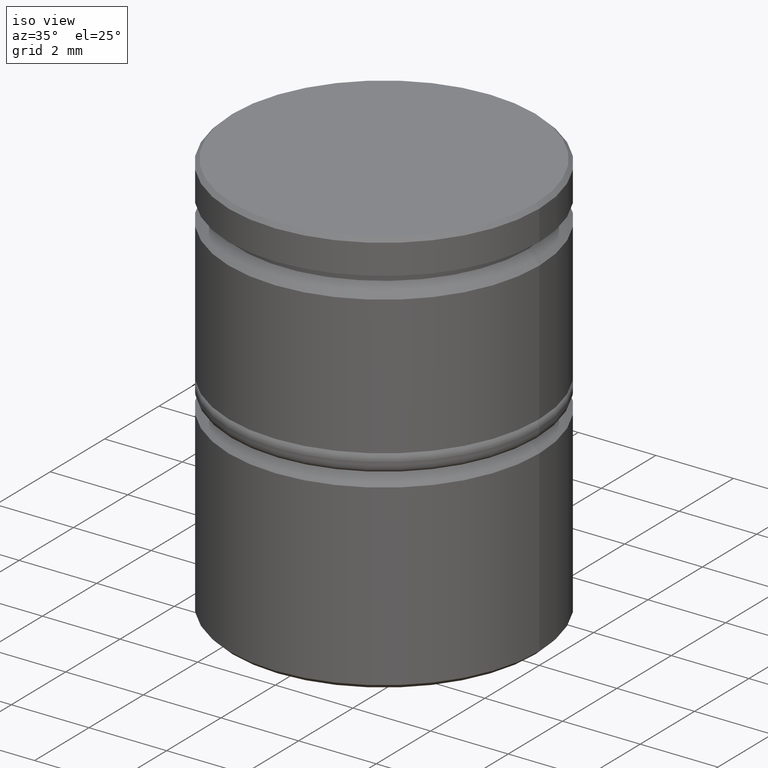
[diagram: clean part render]
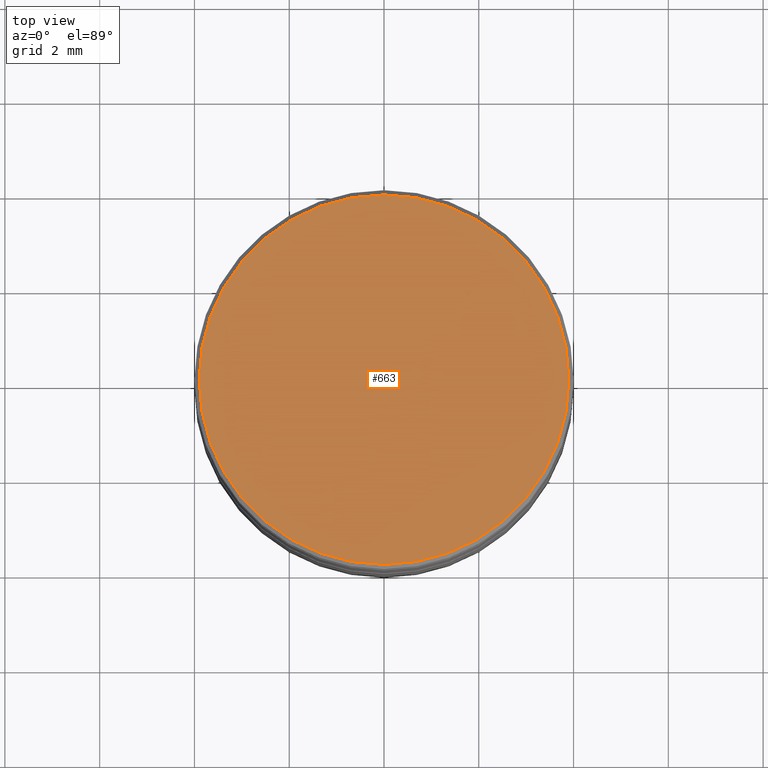
[diagram: tour spotlight — one face highlighted and labeled with its STEP entity id]
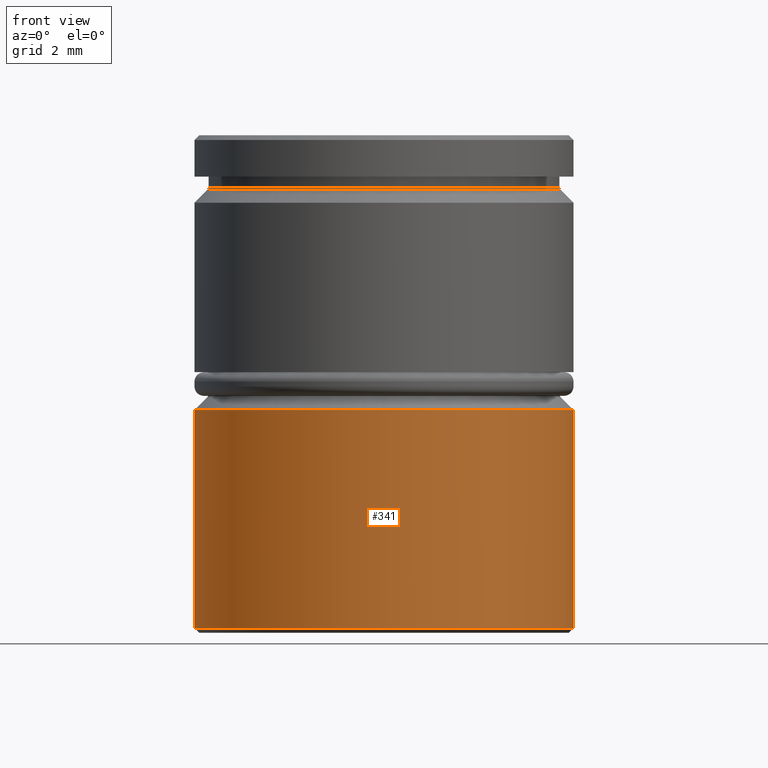
[diagram: tour spotlight — one face highlighted and labeled with its STEP entity id]
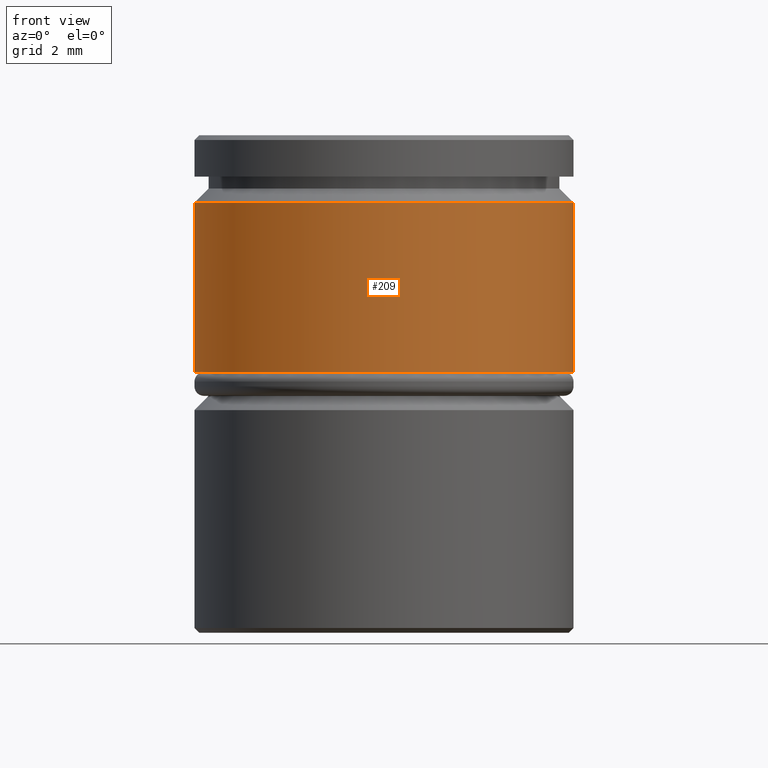
[diagram: tour spotlight — one face highlighted and labeled with its STEP entity id]
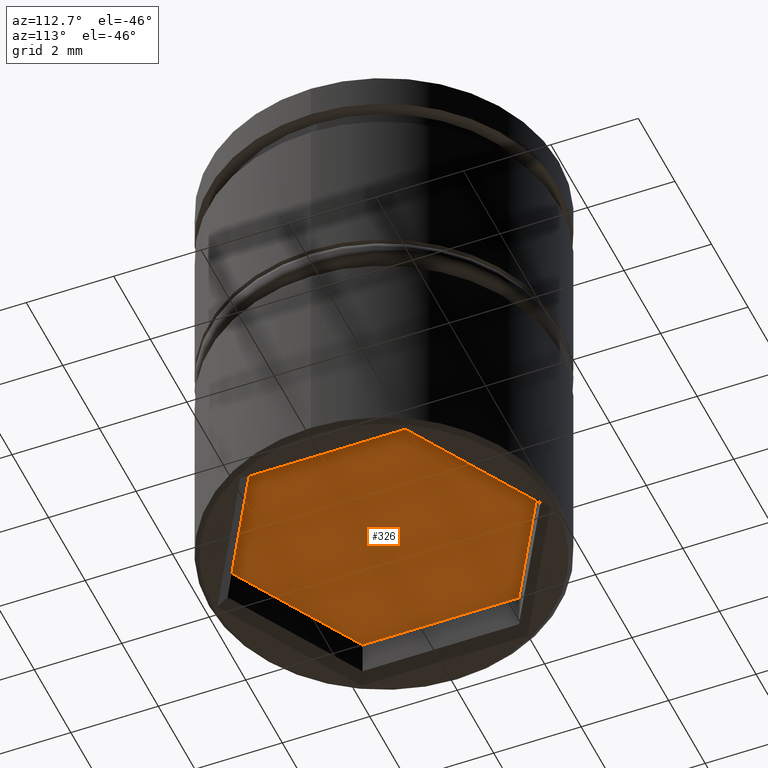
[diagram: tour spotlight — one face highlighted and labeled with its STEP entity id]
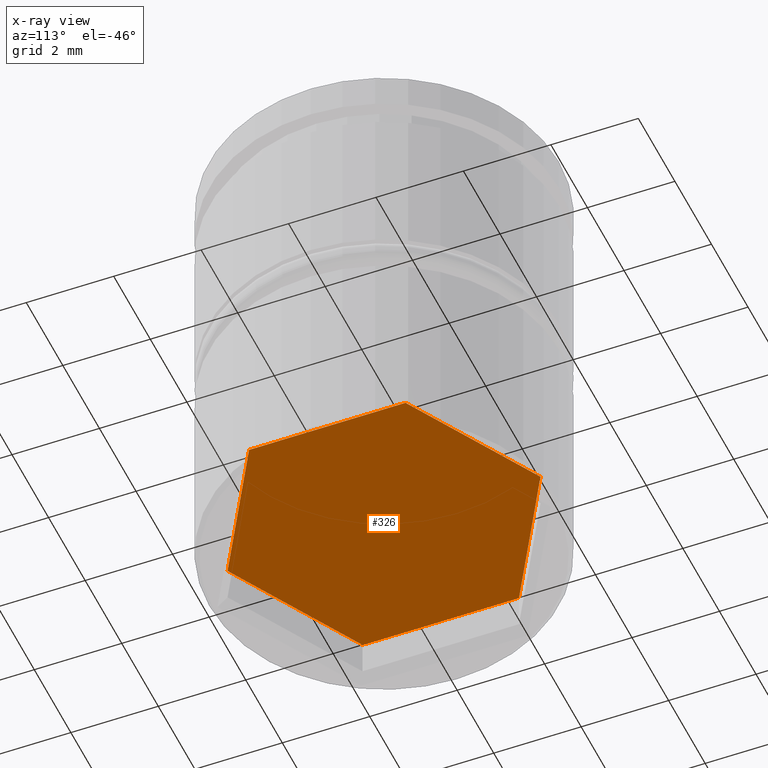
[diagram: x-ray of the same camera — body ghosted, this tour face saturated]
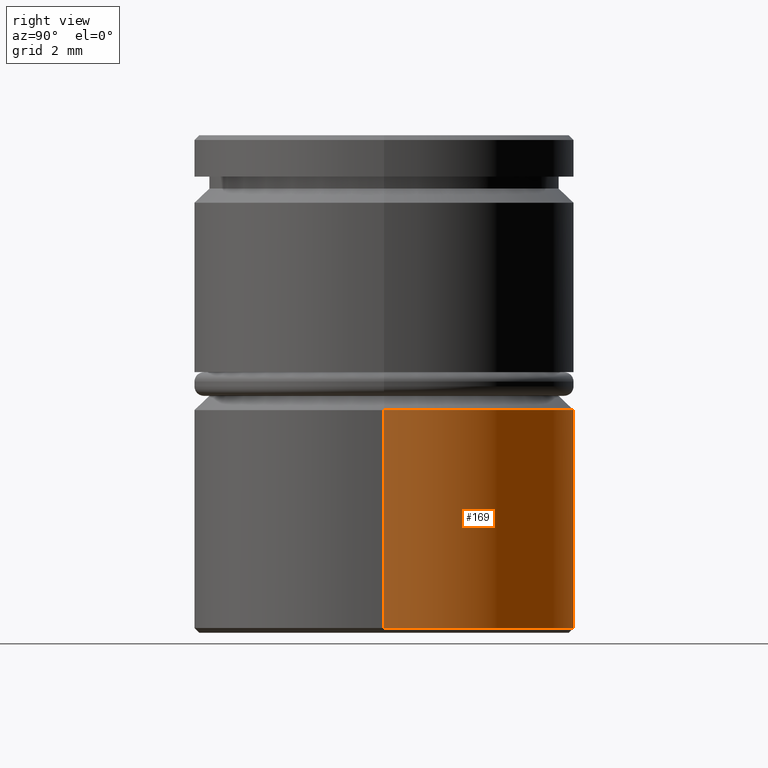
[diagram: tour spotlight — one face highlighted and labeled with its STEP entity id]
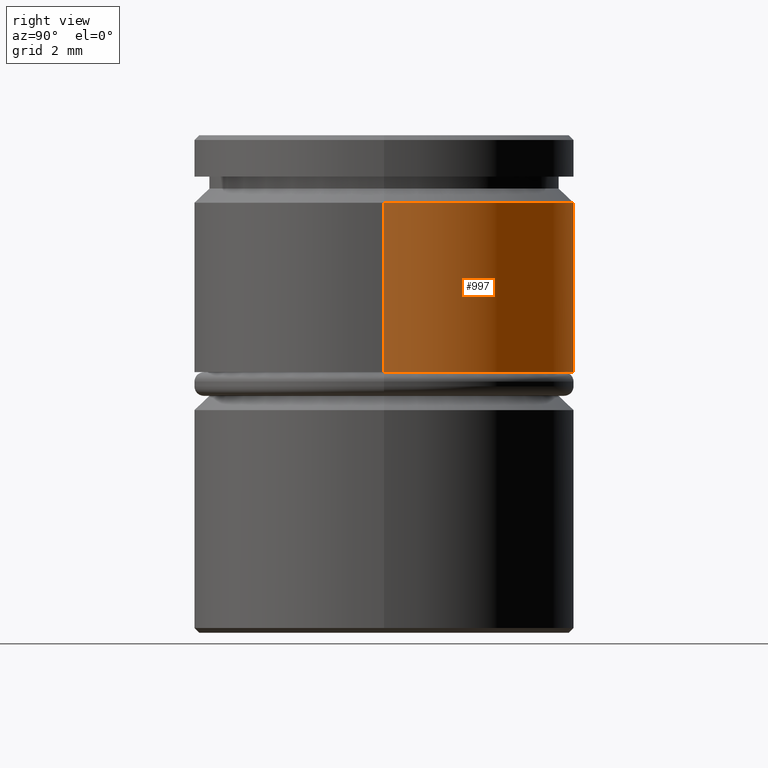
[diagram: tour spotlight — one face highlighted and labeled with its STEP entity id]
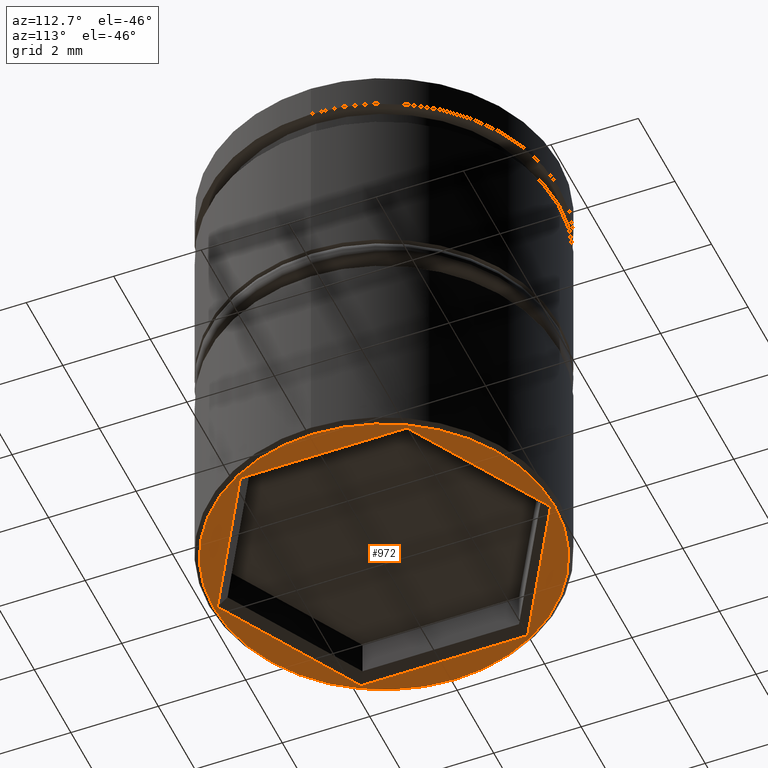
[diagram: tour spotlight — one face highlighted and labeled with its STEP entity id]
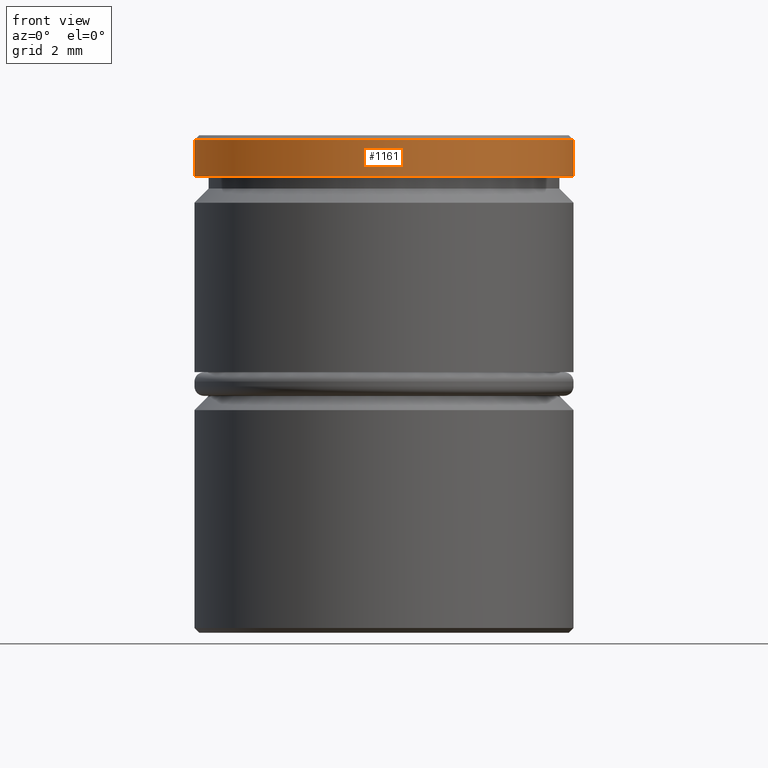
[diagram: tour spotlight — one face highlighted and labeled with its STEP entity id]
A machine part: a face-by-face anatomy tour. The part has 43 B-rep faces; the first image is the clean iso view, then the 8 largest visible faces are spotlighted one at a time (largest first), each with its STEP entity span.

Face 1 — top view, entity #663. In plain terms, the highlighted planar face has unit normal (0, -0, 1).
Definition (entity closure, byte-faithful):
#36 = EDGE_CURVE ( 'NONE', #608, #158, #463, .T. ) ;
#41 = ORIENTED_EDGE ( 'NONE', *, *, #36, .T. ) ;
#158 = VERTEX_POINT ( 'NONE', #920 ) ;
#162 = DIRECTION ( 'NONE',  ( 0.000000000000000000, -0.000000000000000000, 1.000000000000000000 ) ) ;
#223 = ORIENTED_EDGE ( 'NONE', *, *, #717, .T. ) ;
#226 = CARTESIAN_POINT ( 'NONE',  ( 0.000000000000000000, 0.000000000000000000, 0.000000000000000000 ) ) ;
#276 = EDGE_LOOP ( 'NONE', ( #41, #223 ) ) ;
#324 = AXIS2_PLACEMENT_3D ( 'NONE', #1160, #162, #710 ) ;
#369 = PLANE ( 'NONE',  #324 ) ;
#385 = CARTESIAN_POINT ( 'NONE',  ( 0.000000000000000000, 0.000000000000000000, 0.000000000000000000 ) ) ;
#408 = DIRECTION ( 'NONE',  ( 1.000000000000000000, 0.000000000000000000, 0.000000000000000000 ) ) ;
#463 = CIRCLE ( 'NONE', #1104, 3.900000000000002576 ) ;
#577 = DIRECTION ( 'NONE',  ( 1.000000000000000000, 0.000000000000000000, 0.000000000000000000 ) ) ;
#608 = VERTEX_POINT ( 'NONE', #812 ) ;
#663 = ADVANCED_FACE ( 'NONE', ( #1156 ), #369, .T. ) ;
#706 = DIRECTION ( 'NONE',  ( -0.000000000000000000, -0.000000000000000000, 1.000000000000000000 ) ) ;
#710 = DIRECTION ( 'NONE',  ( 1.000000000000000000, 0.000000000000000000, 0.000000000000000000 ) ) ;
#717 = EDGE_CURVE ( 'NONE', #158, #608, #820, .T. ) ;
#750 = DIRECTION ( 'NONE',  ( -0.000000000000000000, -0.000000000000000000, 1.000000000000000000 ) ) ;
#812 = CARTESIAN_POINT ( 'NONE',  ( -3.900000000000002576, 0.000000000000000000, 0.000000000000000000 ) ) ;
#820 = CIRCLE ( 'NONE', #1177, 3.900000000000002576 ) ;
#920 = CARTESIAN_POINT ( 'NONE',  ( 3.900000000000002576, 4.837354856632047030E-16, 0.000000000000000000 ) ) ;
#1104 = AXIS2_PLACEMENT_3D ( 'NONE', #226, #706, #408 ) ;
#1156 = FACE_OUTER_BOUND ( 'NONE', #276, .T. ) ;
#1160 = CARTESIAN_POINT ( 'NONE',  ( 0.000000000000000000, 0.000000000000000000, 0.000000000000000000 ) ) ;
#1177 = AXIS2_PLACEMENT_3D ( 'NONE', #385, #750, #577 ) ;

Face 2 — front view, entity #341. In plain terms, the highlighted cylindrical surface (partial cylindrical patch) has radius 4 mm, axis along (-0, -0, 1).
Definition (entity closure, byte-faithful):
#29 = CARTESIAN_POINT ( 'NONE',  ( 4.000000000000000000, 0.000000000000000000, -5.800000000000003375 ) ) ;
#160 = ORIENTED_EDGE ( 'NONE', *, *, #289, .T. ) ;
#177 = CARTESIAN_POINT ( 'NONE',  ( 0.000000000000000000, 0.000000000000000000, -10.40000000000000213 ) ) ;
#183 = CARTESIAN_POINT ( 'NONE',  ( 0.000000000000000000, 0.000000000000000000, 0.000000000000000000 ) ) ;
#191 = LINE ( 'NONE', #571, #489 ) ;
#214 = AXIS2_PLACEMENT_3D ( 'NONE', #183, #563, #539 ) ;
#256 = CARTESIAN_POINT ( 'NONE',  ( 0.000000000000000000, 0.000000000000000000, -5.800000000000003375 ) ) ;
#289 = EDGE_CURVE ( 'NONE', #739, #415, #509, .T. ) ;
#291 = VERTEX_POINT ( 'NONE', #1165 ) ;
#341 = ADVANCED_FACE ( 'NONE', ( #734 ), #544, .T. ) ;
#355 = DIRECTION ( 'NONE',  ( 0.000000000000000000, 0.000000000000000000, -1.000000000000000000 ) ) ;
#368 = AXIS2_PLACEMENT_3D ( 'NONE', #177, #977, #973 ) ;
#403 = ORIENTED_EDGE ( 'NONE', *, *, #406, .T. ) ;
#406 = EDGE_CURVE ( 'NONE', #415, #1128, #191, .T. ) ;
#415 = VERTEX_POINT ( 'NONE', #783 ) ;
#461 = EDGE_CURVE ( 'NONE', #739, #291, #705, .T. ) ;
#489 = VECTOR ( 'NONE', #912, 1000.000000000000000 ) ;
#503 = CIRCLE ( 'NONE', #529, 4.000000000000000000 ) ;
#506 = EDGE_LOOP ( 'NONE', ( #1061, #160, #403, #633 ) ) ;
#509 = CIRCLE ( 'NONE', #368, 4.000000000000000000 ) ;
#529 = AXIS2_PLACEMENT_3D ( 'NONE', #256, #355, #1065 ) ;
#539 = DIRECTION ( 'NONE',  ( 1.000000000000000000, 0.000000000000000000, 0.000000000000000000 ) ) ;
#544 = CYLINDRICAL_SURFACE ( 'NONE', #214, 4.000000000000000000 ) ;
#563 = DIRECTION ( 'NONE',  ( -0.000000000000000000, -0.000000000000000000, 1.000000000000000000 ) ) ;
#571 = CARTESIAN_POINT ( 'NONE',  ( 4.000000000000000000, 0.000000000000000000, 0.000000000000000000 ) ) ;
#633 = ORIENTED_EDGE ( 'NONE', *, *, #683, .T. ) ;
#683 = EDGE_CURVE ( 'NONE', #1128, #291, #503, .T. ) ;
#694 = CARTESIAN_POINT ( 'NONE',  ( -4.000000000000000000, 4.898587196589412829E-16, 0.000000000000000000 ) ) ;
#701 = DIRECTION ( 'NONE',  ( -0.000000000000000000, -0.000000000000000000, 1.000000000000000000 ) ) ;
#705 = LINE ( 'NONE', #694, #839 ) ;
#734 = FACE_OUTER_BOUND ( 'NONE', #506, .T. ) ;
#739 = VERTEX_POINT ( 'NONE', #760 ) ;
#760 = CARTESIAN_POINT ( 'NONE',  ( -4.000000000000000000, 4.898587196589412829E-16, -10.40000000000000213 ) ) ;
#783 = CARTESIAN_POINT ( 'NONE',  ( 4.000000000000000000, 0.000000000000000000, -10.40000000000000213 ) ) ;
#839 = VECTOR ( 'NONE', #701, 1000.000000000000000 ) ;
#912 = DIRECTION ( 'NONE',  ( -0.000000000000000000, -0.000000000000000000, 1.000000000000000000 ) ) ;
#973 = DIRECTION ( 'NONE',  ( -1.000000000000000000, 0.000000000000000000, 0.000000000000000000 ) ) ;
#977 = DIRECTION ( 'NONE',  ( -0.000000000000000000, -0.000000000000000000, 1.000000000000000000 ) ) ;
#1061 = ORIENTED_EDGE ( 'NONE', *, *, #461, .F. ) ;
#1065 = DIRECTION ( 'NONE',  ( 1.000000000000000000, 0.000000000000000000, 0.000000000000000000 ) ) ;
#1128 = VERTEX_POINT ( 'NONE', #29 ) ;
#1165 = CARTESIAN_POINT ( 'NONE',  ( -4.000000000000000000, 4.898587196589412829E-16, -5.800000000000003375 ) ) ;

Face 3 — front view, entity #209. In plain terms, the highlighted cylindrical surface (partial cylindrical patch) has radius 4 mm, axis along (-0, -0, 1).
Definition (entity closure, byte-faithful):
#31 = CARTESIAN_POINT ( 'NONE',  ( -4.000000000000000000, 4.898587196589412829E-16, 0.000000000000000000 ) ) ;
#33 = CARTESIAN_POINT ( 'NONE',  ( 0.000000000000000000, 0.000000000000000000, -4.999999999999999112 ) ) ;
#49 = CARTESIAN_POINT ( 'NONE',  ( 4.000000000000000000, 0.000000000000000000, 0.000000000000000000 ) ) ;
#74 = EDGE_CURVE ( 'NONE', #736, #681, #149, .T. ) ;
#128 = VECTOR ( 'NONE', #245, 1000.000000000000000 ) ;
#149 = LINE ( 'NONE', #49, #128 ) ;
#198 = VERTEX_POINT ( 'NONE', #655 ) ;
#209 = ADVANCED_FACE ( 'NONE', ( #303 ), #1020, .T. ) ;
#242 = ORIENTED_EDGE ( 'NONE', *, *, #1168, .T. ) ;
#245 = DIRECTION ( 'NONE',  ( -0.000000000000000000, -0.000000000000000000, 1.000000000000000000 ) ) ;
#295 = DIRECTION ( 'NONE',  ( 1.000000000000000000, 0.000000000000000000, 0.000000000000000000 ) ) ;
#303 = FACE_OUTER_BOUND ( 'NONE', #982, .T. ) ;
#335 = LINE ( 'NONE', #31, #729 ) ;
#377 = DIRECTION ( 'NONE',  ( 0.000000000000000000, 0.000000000000000000, -1.000000000000000000 ) ) ;
#384 = CIRCLE ( 'NONE', #1034, 4.000000000000000000 ) ;
#392 = DIRECTION ( 'NONE',  ( 1.000000000000000000, 0.000000000000000000, 0.000000000000000000 ) ) ;
#492 = CARTESIAN_POINT ( 'NONE',  ( 4.000000000000000000, 0.000000000000000000, -4.999999999999999112 ) ) ;
#548 = AXIS2_PLACEMENT_3D ( 'NONE', #917, #834, #392 ) ;
#643 = CARTESIAN_POINT ( 'NONE',  ( 0.000000000000000000, 0.000000000000000000, -1.425000000000001821 ) ) ;
#652 = DIRECTION ( 'NONE',  ( 1.000000000000000000, 0.000000000000000000, 0.000000000000000000 ) ) ;
#655 = CARTESIAN_POINT ( 'NONE',  ( -4.000000000000000000, 4.898587196589412829E-16, -4.999999999999999112 ) ) ;
#669 = ORIENTED_EDGE ( 'NONE', *, *, #815, .F. ) ;
#681 = VERTEX_POINT ( 'NONE', #1062 ) ;
#714 = VERTEX_POINT ( 'NONE', #828 ) ;
#718 = ORIENTED_EDGE ( 'NONE', *, *, #74, .T. ) ;
#719 = DIRECTION ( 'NONE',  ( -0.000000000000000000, -0.000000000000000000, 1.000000000000000000 ) ) ;
#729 = VECTOR ( 'NONE', #719, 1000.000000000000000 ) ;
#736 = VERTEX_POINT ( 'NONE', #492 ) ;
#815 = EDGE_CURVE ( 'NONE', #198, #714, #335, .T. ) ;
#828 = CARTESIAN_POINT ( 'NONE',  ( -4.000000000000000000, 4.898587196589412829E-16, -1.425000000000001821 ) ) ;
#834 = DIRECTION ( 'NONE',  ( -0.000000000000000000, -0.000000000000000000, 1.000000000000000000 ) ) ;
#879 = EDGE_CURVE ( 'NONE', #681, #714, #384, .T. ) ;
#909 = CIRCLE ( 'NONE', #941, 4.000000000000000000 ) ;
#917 = CARTESIAN_POINT ( 'NONE',  ( 0.000000000000000000, 0.000000000000000000, 0.000000000000000000 ) ) ;
#941 = AXIS2_PLACEMENT_3D ( 'NONE', #33, #1171, #295 ) ;
#982 = EDGE_LOOP ( 'NONE', ( #669, #242, #718, #1126 ) ) ;
#1020 = CYLINDRICAL_SURFACE ( 'NONE', #548, 4.000000000000000000 ) ;
#1034 = AXIS2_PLACEMENT_3D ( 'NONE', #643, #377, #652 ) ;
#1062 = CARTESIAN_POINT ( 'NONE',  ( 4.000000000000000000, 0.000000000000000000, -1.425000000000001821 ) ) ;
#1126 = ORIENTED_EDGE ( 'NONE', *, *, #879, .T. ) ;
#1168 = EDGE_CURVE ( 'NONE', #198, #736, #909, .T. ) ;
#1171 = DIRECTION ( 'NONE',  ( -0.000000000000000000, -0.000000000000000000, 1.000000000000000000 ) ) ;

Face 4 — auxiliary view, entity #326. An x-ray twin of the same camera follows (body ghosted, this face saturated) — the face is partly hidden behind the body. In plain terms, the highlighted planar face has unit normal (0, 0, -1).
Definition (entity closure, byte-faithful):
#8 = CARTESIAN_POINT ( 'NONE',  ( 3.100000000000000977, 1.789785834487839455, -9.500000000000001776 ) ) ;
#13 = CARTESIAN_POINT ( 'NONE',  ( 3.100000000000000977, -1.789785834487840344, -9.500000000000001776 ) ) ;
#23 = DIRECTION ( 'NONE',  ( -0.8660254037844384856, 0.5000000000000002220, 0.000000000000000000 ) ) ;
#25 = DIRECTION ( 'NONE',  ( 0.8660254037844387076, 0.4999999999999998335, 0.000000000000000000 ) ) ;
#80 = ORIENTED_EDGE ( 'NONE', *, *, #185, .T. ) ;
#116 = CARTESIAN_POINT ( 'NONE',  ( 0.000000000000000000, 3.579571668975680243, -9.500000000000001776 ) ) ;
#125 = CARTESIAN_POINT ( 'NONE',  ( 3.100000000000000977, 1.789785834487839455, -9.500000000000001776 ) ) ;
#144 = ORIENTED_EDGE ( 'NONE', *, *, #517, .T. ) ;
#148 = LINE ( 'NONE', #310, #271 ) ;
#151 = VERTEX_POINT ( 'NONE', #263 ) ;
#165 = EDGE_CURVE ( 'NONE', #151, #207, #1002, .T. ) ;
#185 = EDGE_CURVE ( 'NONE', #247, #383, #995, .T. ) ;
#207 = VERTEX_POINT ( 'NONE', #8 ) ;
#217 = EDGE_CURVE ( 'NONE', #383, #235, #292, .T. ) ;
#235 = VERTEX_POINT ( 'NONE', #927 ) ;
#247 = VERTEX_POINT ( 'NONE', #309 ) ;
#263 = CARTESIAN_POINT ( 'NONE',  ( 0.000000000000000000, 3.579571668975680243, -9.500000000000001776 ) ) ;
#271 = VECTOR ( 'NONE', #525, 1000.000000000000000 ) ;
#281 = DIRECTION ( 'NONE',  ( -0.8660254037844387076, -0.4999999999999999445, 0.000000000000000000 ) ) ;
#292 = LINE ( 'NONE', #751, #530 ) ;
#309 = CARTESIAN_POINT ( 'NONE',  ( 3.100000000000000977, -1.789785834487840344, -9.500000000000001776 ) ) ;
#310 = CARTESIAN_POINT ( 'NONE',  ( -3.100000000000000533, -1.789785834487839900, -9.500000000000001776 ) ) ;
#326 = ADVANCED_FACE ( 'NONE', ( #366 ), #648, .T. ) ;
#350 = CARTESIAN_POINT ( 'NONE',  ( 0.000000000000000000, 0.000000000000000000, -9.500000000000001776 ) ) ;
#366 = FACE_OUTER_BOUND ( 'NONE', #911, .T. ) ;
#383 = VERTEX_POINT ( 'NONE', #467 ) ;
#416 = DIRECTION ( 'NONE',  ( -1.211544031239644746E-16, -1.000000000000000000, 0.000000000000000000 ) ) ;
#455 = ORIENTED_EDGE ( 'NONE', *, *, #1140, .T. ) ;
#467 = CARTESIAN_POINT ( 'NONE',  ( -4.310144132208485433E-16, -3.579571668975680687, -9.500000000000001776 ) ) ;
#481 = LINE ( 'NONE', #835, #748 ) ;
#517 = EDGE_CURVE ( 'NONE', #235, #1096, #148, .T. ) ;
#525 = DIRECTION ( 'NONE',  ( 0.000000000000000000, 1.000000000000000000, 0.000000000000000000 ) ) ;
#530 = VECTOR ( 'NONE', #23, 1000.000000000000227 ) ;
#587 = VECTOR ( 'NONE', #743, 1000.000000000000227 ) ;
#648 = PLANE ( 'NONE',  #926 ) ;
#743 = DIRECTION ( 'NONE',  ( 0.8660254037844385966, -0.5000000000000000000, 0.000000000000000000 ) ) ;
#746 = VECTOR ( 'NONE', #416, 1000.000000000000000 ) ;
#748 = VECTOR ( 'NONE', #25, 1000.000000000000114 ) ;
#751 = CARTESIAN_POINT ( 'NONE',  ( -4.310144132208485433E-16, -3.579571668975680687, -9.500000000000001776 ) ) ;
#759 = EDGE_CURVE ( 'NONE', #207, #247, #942, .T. ) ;
#803 = ORIENTED_EDGE ( 'NONE', *, *, #217, .T. ) ;
#811 = DIRECTION ( 'NONE',  ( -1.000000000000000000, 0.000000000000000000, -0.000000000000000000 ) ) ;
#835 = CARTESIAN_POINT ( 'NONE',  ( -3.100000000000000533, 1.789785834487841010, -9.500000000000001776 ) ) ;
#911 = EDGE_LOOP ( 'NONE', ( #455, #1100, #971, #80, #803, #144 ) ) ;
#926 = AXIS2_PLACEMENT_3D ( 'NONE', #350, #990, #811 ) ;
#927 = CARTESIAN_POINT ( 'NONE',  ( -3.100000000000000533, -1.789785834487839900, -9.500000000000001776 ) ) ;
#942 = LINE ( 'NONE', #125, #746 ) ;
#961 = VECTOR ( 'NONE', #281, 1000.000000000000000 ) ;
#971 = ORIENTED_EDGE ( 'NONE', *, *, #759, .T. ) ;
#990 = DIRECTION ( 'NONE',  ( 0.000000000000000000, 0.000000000000000000, -1.000000000000000000 ) ) ;
#995 = LINE ( 'NONE', #13, #961 ) ;
#1002 = LINE ( 'NONE', #116, #587 ) ;
#1025 = CARTESIAN_POINT ( 'NONE',  ( -3.100000000000000533, 1.789785834487841010, -9.500000000000001776 ) ) ;
#1096 = VERTEX_POINT ( 'NONE', #1025 ) ;
#1100 = ORIENTED_EDGE ( 'NONE', *, *, #165, .T. ) ;
#1140 = EDGE_CURVE ( 'NONE', #1096, #151, #481, .T. ) ;

Face 5 — right view, entity #169. In plain terms, the highlighted cylindrical surface (partial cylindrical patch) has radius 4 mm, axis along (-0, -0, 1).
Definition (entity closure, byte-faithful):
#29 = CARTESIAN_POINT ( 'NONE',  ( 4.000000000000000000, 0.000000000000000000, -5.800000000000003375 ) ) ;
#103 = FACE_OUTER_BOUND ( 'NONE', #843, .T. ) ;
#169 = ADVANCED_FACE ( 'NONE', ( #103 ), #844, .T. ) ;
#182 = ORIENTED_EDGE ( 'NONE', *, *, #406, .F. ) ;
#191 = LINE ( 'NONE', #571, #489 ) ;
#195 = CARTESIAN_POINT ( 'NONE',  ( 0.000000000000000000, 0.000000000000000000, -5.800000000000003375 ) ) ;
#216 = DIRECTION ( 'NONE',  ( -0.000000000000000000, -0.000000000000000000, 1.000000000000000000 ) ) ;
#222 = DIRECTION ( 'NONE',  ( -0.000000000000000000, -0.000000000000000000, 1.000000000000000000 ) ) ;
#283 = DIRECTION ( 'NONE',  ( 0.000000000000000000, 0.000000000000000000, -1.000000000000000000 ) ) ;
#291 = VERTEX_POINT ( 'NONE', #1165 ) ;
#406 = EDGE_CURVE ( 'NONE', #415, #1128, #191, .T. ) ;
#415 = VERTEX_POINT ( 'NONE', #783 ) ;
#461 = EDGE_CURVE ( 'NONE', #739, #291, #705, .T. ) ;
#474 = DIRECTION ( 'NONE',  ( 1.000000000000000000, 0.000000000000000000, 0.000000000000000000 ) ) ;
#489 = VECTOR ( 'NONE', #912, 1000.000000000000000 ) ;
#571 = CARTESIAN_POINT ( 'NONE',  ( 4.000000000000000000, 0.000000000000000000, 0.000000000000000000 ) ) ;
#573 = ORIENTED_EDGE ( 'NONE', *, *, #461, .T. ) ;
#694 = CARTESIAN_POINT ( 'NONE',  ( -4.000000000000000000, 4.898587196589412829E-16, 0.000000000000000000 ) ) ;
#701 = DIRECTION ( 'NONE',  ( -0.000000000000000000, -0.000000000000000000, 1.000000000000000000 ) ) ;
#705 = LINE ( 'NONE', #694, #839 ) ;
#708 = ORIENTED_EDGE ( 'NONE', *, *, #1006, .T. ) ;
#739 = VERTEX_POINT ( 'NONE', #760 ) ;
#760 = CARTESIAN_POINT ( 'NONE',  ( -4.000000000000000000, 4.898587196589412829E-16, -10.40000000000000213 ) ) ;
#783 = CARTESIAN_POINT ( 'NONE',  ( 4.000000000000000000, 0.000000000000000000, -10.40000000000000213 ) ) ;
#816 = DIRECTION ( 'NONE',  ( 1.000000000000000000, 0.000000000000000000, 0.000000000000000000 ) ) ;
#829 = CARTESIAN_POINT ( 'NONE',  ( 0.000000000000000000, 0.000000000000000000, 0.000000000000000000 ) ) ;
#839 = VECTOR ( 'NONE', #701, 1000.000000000000000 ) ;
#843 = EDGE_LOOP ( 'NONE', ( #708, #573, #937, #182 ) ) ;
#844 = CYLINDRICAL_SURFACE ( 'NONE', #1106, 4.000000000000000000 ) ;
#875 = CIRCLE ( 'NONE', #1071, 4.000000000000000000 ) ;
#912 = DIRECTION ( 'NONE',  ( -0.000000000000000000, -0.000000000000000000, 1.000000000000000000 ) ) ;
#929 = DIRECTION ( 'NONE',  ( -1.000000000000000000, 0.000000000000000000, 0.000000000000000000 ) ) ;
#937 = ORIENTED_EDGE ( 'NONE', *, *, #956, .T. ) ;
#956 = EDGE_CURVE ( 'NONE', #291, #1128, #875, .T. ) ;
#1006 = EDGE_CURVE ( 'NONE', #415, #739, #1090, .T. ) ;
#1071 = AXIS2_PLACEMENT_3D ( 'NONE', #195, #283, #816 ) ;
#1072 = AXIS2_PLACEMENT_3D ( 'NONE', #1091, #222, #929 ) ;
#1090 = CIRCLE ( 'NONE', #1072, 4.000000000000000000 ) ;
#1091 = CARTESIAN_POINT ( 'NONE',  ( 0.000000000000000000, 0.000000000000000000, -10.40000000000000213 ) ) ;
#1106 = AXIS2_PLACEMENT_3D ( 'NONE', #829, #216, #474 ) ;
#1128 = VERTEX_POINT ( 'NONE', #29 ) ;
#1165 = CARTESIAN_POINT ( 'NONE',  ( -4.000000000000000000, 4.898587196589412829E-16, -5.800000000000003375 ) ) ;

Face 6 — right view, entity #997. In plain terms, the highlighted cylindrical surface (partial cylindrical patch) has radius 4 mm, axis along (-0, -0, 1).
Definition (entity closure, byte-faithful):
#16 = CIRCLE ( 'NONE', #154, 4.000000000000000000 ) ;
#31 = CARTESIAN_POINT ( 'NONE',  ( -4.000000000000000000, 4.898587196589412829E-16, 0.000000000000000000 ) ) ;
#49 = CARTESIAN_POINT ( 'NONE',  ( 4.000000000000000000, 0.000000000000000000, 0.000000000000000000 ) ) ;
#61 = ORIENTED_EDGE ( 'NONE', *, *, #815, .T. ) ;
#62 = CARTESIAN_POINT ( 'NONE',  ( 0.000000000000000000, 0.000000000000000000, -4.999999999999999112 ) ) ;
#74 = EDGE_CURVE ( 'NONE', #736, #681, #149, .T. ) ;
#128 = VECTOR ( 'NONE', #245, 1000.000000000000000 ) ;
#149 = LINE ( 'NONE', #49, #128 ) ;
#154 = AXIS2_PLACEMENT_3D ( 'NONE', #62, #933, #428 ) ;
#168 = FACE_OUTER_BOUND ( 'NONE', #570, .T. ) ;
#178 = EDGE_CURVE ( 'NONE', #714, #681, #365, .T. ) ;
#198 = VERTEX_POINT ( 'NONE', #655 ) ;
#243 = EDGE_CURVE ( 'NONE', #736, #198, #16, .T. ) ;
#245 = DIRECTION ( 'NONE',  ( -0.000000000000000000, -0.000000000000000000, 1.000000000000000000 ) ) ;
#335 = LINE ( 'NONE', #31, #729 ) ;
#365 = CIRCLE ( 'NONE', #1131, 4.000000000000000000 ) ;
#414 = ORIENTED_EDGE ( 'NONE', *, *, #243, .T. ) ;
#428 = DIRECTION ( 'NONE',  ( 1.000000000000000000, 0.000000000000000000, 0.000000000000000000 ) ) ;
#444 = AXIS2_PLACEMENT_3D ( 'NONE', #549, #450, #810 ) ;
#450 = DIRECTION ( 'NONE',  ( -0.000000000000000000, -0.000000000000000000, 1.000000000000000000 ) ) ;
#486 = CARTESIAN_POINT ( 'NONE',  ( 0.000000000000000000, 0.000000000000000000, -1.425000000000001821 ) ) ;
#492 = CARTESIAN_POINT ( 'NONE',  ( 4.000000000000000000, 0.000000000000000000, -4.999999999999999112 ) ) ;
#549 = CARTESIAN_POINT ( 'NONE',  ( 0.000000000000000000, 0.000000000000000000, 0.000000000000000000 ) ) ;
#570 = EDGE_LOOP ( 'NONE', ( #414, #61, #1178, #959 ) ) ;
#655 = CARTESIAN_POINT ( 'NONE',  ( -4.000000000000000000, 4.898587196589412829E-16, -4.999999999999999112 ) ) ;
#681 = VERTEX_POINT ( 'NONE', #1062 ) ;
#714 = VERTEX_POINT ( 'NONE', #828 ) ;
#719 = DIRECTION ( 'NONE',  ( -0.000000000000000000, -0.000000000000000000, 1.000000000000000000 ) ) ;
#729 = VECTOR ( 'NONE', #719, 1000.000000000000000 ) ;
#736 = VERTEX_POINT ( 'NONE', #492 ) ;
#810 = DIRECTION ( 'NONE',  ( 1.000000000000000000, 0.000000000000000000, 0.000000000000000000 ) ) ;
#815 = EDGE_CURVE ( 'NONE', #198, #714, #335, .T. ) ;
#828 = CARTESIAN_POINT ( 'NONE',  ( -4.000000000000000000, 4.898587196589412829E-16, -1.425000000000001821 ) ) ;
#840 = DIRECTION ( 'NONE',  ( 0.000000000000000000, 0.000000000000000000, -1.000000000000000000 ) ) ;
#933 = DIRECTION ( 'NONE',  ( -0.000000000000000000, -0.000000000000000000, 1.000000000000000000 ) ) ;
#959 = ORIENTED_EDGE ( 'NONE', *, *, #74, .F. ) ;
#997 = ADVANCED_FACE ( 'NONE', ( #168 ), #1169, .T. ) ;
#1007 = DIRECTION ( 'NONE',  ( 1.000000000000000000, 0.000000000000000000, 0.000000000000000000 ) ) ;
#1062 = CARTESIAN_POINT ( 'NONE',  ( 4.000000000000000000, 0.000000000000000000, -1.425000000000001821 ) ) ;
#1131 = AXIS2_PLACEMENT_3D ( 'NONE', #486, #840, #1007 ) ;
#1169 = CYLINDRICAL_SURFACE ( 'NONE', #444, 4.000000000000000000 ) ;
#1178 = ORIENTED_EDGE ( 'NONE', *, *, #178, .T. ) ;

Face 7 — auxiliary view, entity #972. In plain terms, the highlighted planar face has unit normal (0, 0, -1).
Definition (entity closure, byte-faithful):
#37 = LINE ( 'NONE', #1063, #94 ) ;
#64 = DIRECTION ( 'NONE',  ( -1.000000000000000000, 0.000000000000000000, 0.000000000000000000 ) ) ;
#85 = EDGE_CURVE ( 'NONE', #1102, #320, #799, .T. ) ;
#86 = CARTESIAN_POINT ( 'NONE',  ( 3.299999999999999822, 1.905255888325763536, -10.50000000000000000 ) ) ;
#94 = VECTOR ( 'NONE', #314, 1000.000000000000000 ) ;
#104 = DIRECTION ( 'NONE',  ( 0.000000000000000000, 0.000000000000000000, -1.000000000000000000 ) ) ;
#109 = LINE ( 'NONE', #120, #228 ) ;
#120 = CARTESIAN_POINT ( 'NONE',  ( 3.299999999999999822, 1.789785834487839455, -10.50000000000000000 ) ) ;
#126 = CARTESIAN_POINT ( 'NONE',  ( -3.199999999999999734, 1.962990915244727574, -10.50000000000000000 ) ) ;
#132 = VERTEX_POINT ( 'NONE', #257 ) ;
#159 = EDGE_CURVE ( 'NONE', #817, #880, #109, .T. ) ;
#163 = EDGE_LOOP ( 'NONE', ( #617, #666, #203, #779, #473, #796 ) ) ;
#180 = FACE_OUTER_BOUND ( 'NONE', #1001, .T. ) ;
#200 = CARTESIAN_POINT ( 'NONE',  ( -3.900000000000000799, 4.837354856632045057E-16, -10.50000000000000000 ) ) ;
#203 = ORIENTED_EDGE ( 'NONE', *, *, #159, .T. ) ;
#221 = DIRECTION ( 'NONE',  ( 0.000000000000000000, 0.000000000000000000, -1.000000000000000000 ) ) ;
#228 = VECTOR ( 'NONE', #1086, 1000.000000000000000 ) ;
#244 = CARTESIAN_POINT ( 'NONE',  ( 0.000000000000000000, 0.000000000000000000, -10.50000000000000000 ) ) ;
#257 = CARTESIAN_POINT ( 'NONE',  ( -3.299999999999998934, -1.905255888325763536, -10.50000000000000000 ) ) ;
#272 = PLANE ( 'NONE',  #420 ) ;
#286 = VECTOR ( 'NONE', #1123, 999.9999999999998863 ) ;
#314 = DIRECTION ( 'NONE',  ( 0.000000000000000000, -1.000000000000000000, 0.000000000000000000 ) ) ;
#320 = VERTEX_POINT ( 'NONE', #1159 ) ;
#322 = CARTESIAN_POINT ( 'NONE',  ( -4.459829496446707818E-16, 3.810511776651528848, -10.50000000000000000 ) ) ;
#370 = VECTOR ( 'NONE', #505, 1000.000000000000000 ) ;
#393 = CARTESIAN_POINT ( 'NONE',  ( -7.824928805008198775E-16, -3.810511776651528404, -10.50000000000000000 ) ) ;
#402 = CARTESIAN_POINT ( 'NONE',  ( 0.09999999999999928391, 3.752776749732566586, -10.50000000000000000 ) ) ;
#418 = CARTESIAN_POINT ( 'NONE',  ( 0.000000000000000000, 0.000000000000000000, -10.50000000000000000 ) ) ;
#420 = AXIS2_PLACEMENT_3D ( 'NONE', #470, #104, #830 ) ;
#459 = VERTEX_POINT ( 'NONE', #322 ) ;
#470 = CARTESIAN_POINT ( 'NONE',  ( 0.000000000000000000, 4.000000000000000000, -10.50000000000000000 ) ) ;
#473 = ORIENTED_EDGE ( 'NONE', *, *, #543, .T. ) ;
#475 = ORIENTED_EDGE ( 'NONE', *, *, #85, .T. ) ;
#476 = LINE ( 'NONE', #574, #642 ) ;
#505 = DIRECTION ( 'NONE',  ( -0.8660254037844387076, -0.4999999999999998335, 0.000000000000000000 ) ) ;
#528 = EDGE_CURVE ( 'NONE', #320, #1102, #590, .T. ) ;
#543 = EDGE_CURVE ( 'NONE', #459, #852, #934, .T. ) ;
#574 = CARTESIAN_POINT ( 'NONE',  ( 3.199999999999999734, -1.962990915244726242, -10.50000000000000000 ) ) ;
#578 = LINE ( 'NONE', #402, #925 ) ;
#590 = CIRCLE ( 'NONE', #728, 3.900000000000000799 ) ;
#598 = DIRECTION ( 'NONE',  ( -1.000000000000000000, 0.000000000000000000, 0.000000000000000000 ) ) ;
#617 = ORIENTED_EDGE ( 'NONE', *, *, #752, .T. ) ;
#642 = VECTOR ( 'NONE', #914, 1000.000000000000000 ) ;
#666 = ORIENTED_EDGE ( 'NONE', *, *, #970, .T. ) ;
#700 = LINE ( 'NONE', #867, #286 ) ;
#728 = AXIS2_PLACEMENT_3D ( 'NONE', #244, #221, #598 ) ;
#742 = ORIENTED_EDGE ( 'NONE', *, *, #528, .T. ) ;
#752 = EDGE_CURVE ( 'NONE', #132, #1158, #700, .T. ) ;
#779 = ORIENTED_EDGE ( 'NONE', *, *, #1030, .T. ) ;
#796 = ORIENTED_EDGE ( 'NONE', *, *, #827, .T. ) ;
#799 = CIRCLE ( 'NONE', #938, 3.900000000000000799 ) ;
#817 = VERTEX_POINT ( 'NONE', #1116 ) ;
#822 = CARTESIAN_POINT ( 'NONE',  ( -3.299999999999998934, 1.905255888325765312, -10.50000000000000000 ) ) ;
#827 = EDGE_CURVE ( 'NONE', #852, #132, #37, .T. ) ;
#830 = DIRECTION ( 'NONE',  ( -1.000000000000000000, 0.000000000000000000, -0.000000000000000000 ) ) ;
#852 = VERTEX_POINT ( 'NONE', #822 ) ;
#867 = CARTESIAN_POINT ( 'NONE',  ( -0.09999999999999956146, -3.752776749732566586, -10.50000000000000000 ) ) ;
#880 = VERTEX_POINT ( 'NONE', #86 ) ;
#914 = DIRECTION ( 'NONE',  ( 0.8660254037844387076, 0.4999999999999998890, 0.000000000000000000 ) ) ;
#925 = VECTOR ( 'NONE', #1008, 1000.000000000000114 ) ;
#934 = LINE ( 'NONE', #126, #370 ) ;
#938 = AXIS2_PLACEMENT_3D ( 'NONE', #418, #1137, #64 ) ;
#970 = EDGE_CURVE ( 'NONE', #1158, #817, #476, .T. ) ;
#972 = ADVANCED_FACE ( 'NONE', ( #1077, #180 ), #272, .T. ) ;
#1001 = EDGE_LOOP ( 'NONE', ( #742, #475 ) ) ;
#1008 = DIRECTION ( 'NONE',  ( -0.8660254037844385966, 0.5000000000000001110, 0.000000000000000000 ) ) ;
#1030 = EDGE_CURVE ( 'NONE', #880, #459, #578, .T. ) ;
#1063 = CARTESIAN_POINT ( 'NONE',  ( -3.299999999999998934, -1.789785834487839900, -10.50000000000000000 ) ) ;
#1077 = FACE_BOUND ( 'NONE', #163, .T. ) ;
#1086 = DIRECTION ( 'NONE',  ( 1.211544031239644746E-16, 1.000000000000000000, 0.000000000000000000 ) ) ;
#1102 = VERTEX_POINT ( 'NONE', #200 ) ;
#1116 = CARTESIAN_POINT ( 'NONE',  ( 3.299999999999999378, -1.905255888325763980, -10.50000000000000000 ) ) ;
#1123 = DIRECTION ( 'NONE',  ( 0.8660254037844385966, -0.5000000000000002220, 0.000000000000000000 ) ) ;
#1137 = DIRECTION ( 'NONE',  ( 0.000000000000000000, 0.000000000000000000, -1.000000000000000000 ) ) ;
#1158 = VERTEX_POINT ( 'NONE', #393 ) ;
#1159 = CARTESIAN_POINT ( 'NONE',  ( 3.900000000000000799, 0.000000000000000000, -10.50000000000000000 ) ) ;

Face 8 — front view, entity #1161. In plain terms, the highlighted cylindrical surface (partial cylindrical patch) has radius 4 mm, axis along (-0, -0, 1).
Definition (entity closure, byte-faithful):
#14 = EDGE_CURVE ( 'NONE', #425, #837, #1033, .T. ) ;
#43 = EDGE_CURVE ( 'NONE', #1032, #511, #996, .T. ) ;
#99 = EDGE_CURVE ( 'NONE', #425, #511, #240, .T. ) ;
#117 = CARTESIAN_POINT ( 'NONE',  ( 4.000000000000000000, 0.000000000000000000, -0.09999999999999766020 ) ) ;
#143 = DIRECTION ( 'NONE',  ( 0.000000000000000000, 0.000000000000000000, -1.000000000000000000 ) ) ;
#174 = CARTESIAN_POINT ( 'NONE',  ( 4.000000000000000000, 0.000000000000000000, 0.000000000000000000 ) ) ;
#218 = DIRECTION ( 'NONE',  ( -0.000000000000000000, -0.000000000000000000, 1.000000000000000000 ) ) ;
#240 = LINE ( 'NONE', #1150, #1088 ) ;
#308 = CARTESIAN_POINT ( 'NONE',  ( 4.000000000000000000, 0.000000000000000000, -0.8749999999999998890 ) ) ;
#334 = EDGE_LOOP ( 'NONE', ( #824, #353, #947, #542 ) ) ;
#353 = ORIENTED_EDGE ( 'NONE', *, *, #14, .T. ) ;
#425 = VERTEX_POINT ( 'NONE', #614 ) ;
#501 = AXIS2_PLACEMENT_3D ( 'NONE', #958, #143, #870 ) ;
#511 = VERTEX_POINT ( 'NONE', #1024 ) ;
#515 = DIRECTION ( 'NONE',  ( -0.000000000000000000, -0.000000000000000000, 1.000000000000000000 ) ) ;
#536 = DIRECTION ( 'NONE',  ( 1.000000000000000000, 0.000000000000000000, 0.000000000000000000 ) ) ;
#542 = ORIENTED_EDGE ( 'NONE', *, *, #43, .T. ) ;
#554 = DIRECTION ( 'NONE',  ( -0.000000000000000000, -0.000000000000000000, 1.000000000000000000 ) ) ;
#595 = DIRECTION ( 'NONE',  ( 1.000000000000000000, 0.000000000000000000, 0.000000000000000000 ) ) ;
#605 = CARTESIAN_POINT ( 'NONE',  ( 0.000000000000000000, 0.000000000000000000, -0.8749999999999998890 ) ) ;
#614 = CARTESIAN_POINT ( 'NONE',  ( -4.000000000000000000, 4.898587196589412829E-16, -0.8749999999999998890 ) ) ;
#621 = DIRECTION ( 'NONE',  ( -0.000000000000000000, -0.000000000000000000, 1.000000000000000000 ) ) ;
#626 = VECTOR ( 'NONE', #554, 1000.000000000000000 ) ;
#641 = LINE ( 'NONE', #174, #626 ) ;
#691 = EDGE_CURVE ( 'NONE', #837, #1032, #641, .T. ) ;
#762 = FACE_OUTER_BOUND ( 'NONE', #334, .T. ) ;
#824 = ORIENTED_EDGE ( 'NONE', *, *, #99, .F. ) ;
#837 = VERTEX_POINT ( 'NONE', #308 ) ;
#855 = AXIS2_PLACEMENT_3D ( 'NONE', #1105, #218, #595 ) ;
#870 = DIRECTION ( 'NONE',  ( 1.000000000000000000, 0.000000000000000000, 0.000000000000000000 ) ) ;
#947 = ORIENTED_EDGE ( 'NONE', *, *, #691, .T. ) ;
#958 = CARTESIAN_POINT ( 'NONE',  ( 0.000000000000000000, 0.000000000000000000, -0.09999999999999766020 ) ) ;
#996 = CIRCLE ( 'NONE', #501, 4.000000000000000000 ) ;
#1024 = CARTESIAN_POINT ( 'NONE',  ( -4.000000000000000000, 4.898587196589412829E-16, -0.09999999999999766020 ) ) ;
#1032 = VERTEX_POINT ( 'NONE', #117 ) ;
#1033 = CIRCLE ( 'NONE', #1175, 4.000000000000000000 ) ;
#1088 = VECTOR ( 'NONE', #621, 1000.000000000000000 ) ;
#1098 = CYLINDRICAL_SURFACE ( 'NONE', #855, 4.000000000000000000 ) ;
#1105 = CARTESIAN_POINT ( 'NONE',  ( 0.000000000000000000, 0.000000000000000000, 0.000000000000000000 ) ) ;
#1150 = CARTESIAN_POINT ( 'NONE',  ( -4.000000000000000000, 4.898587196589412829E-16, 0.000000000000000000 ) ) ;
#1161 = ADVANCED_FACE ( 'NONE', ( #762 ), #1098, .T. ) ;
#1175 = AXIS2_PLACEMENT_3D ( 'NONE', #605, #515, #536 ) ;